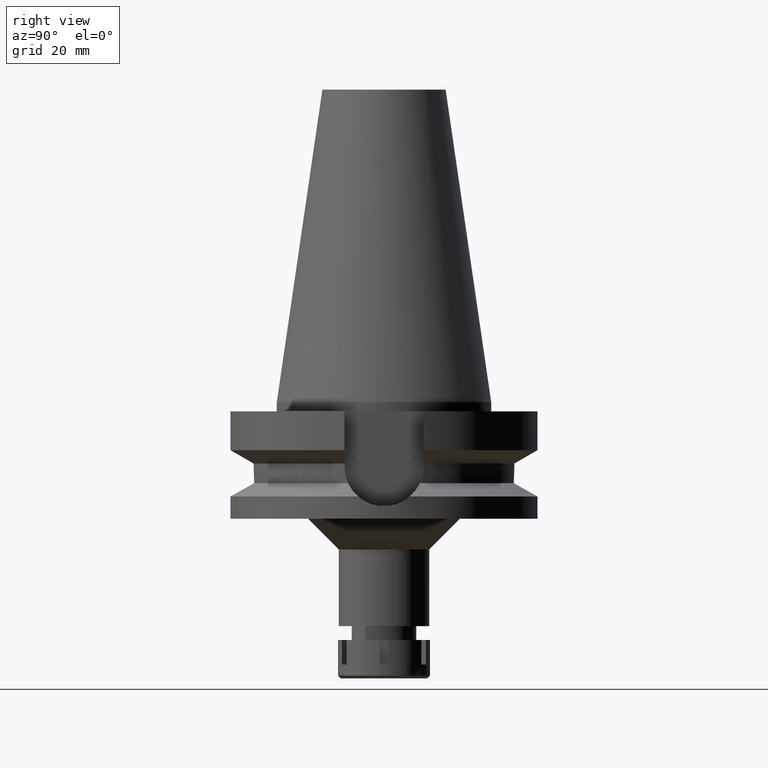
[diagram: clean part render]
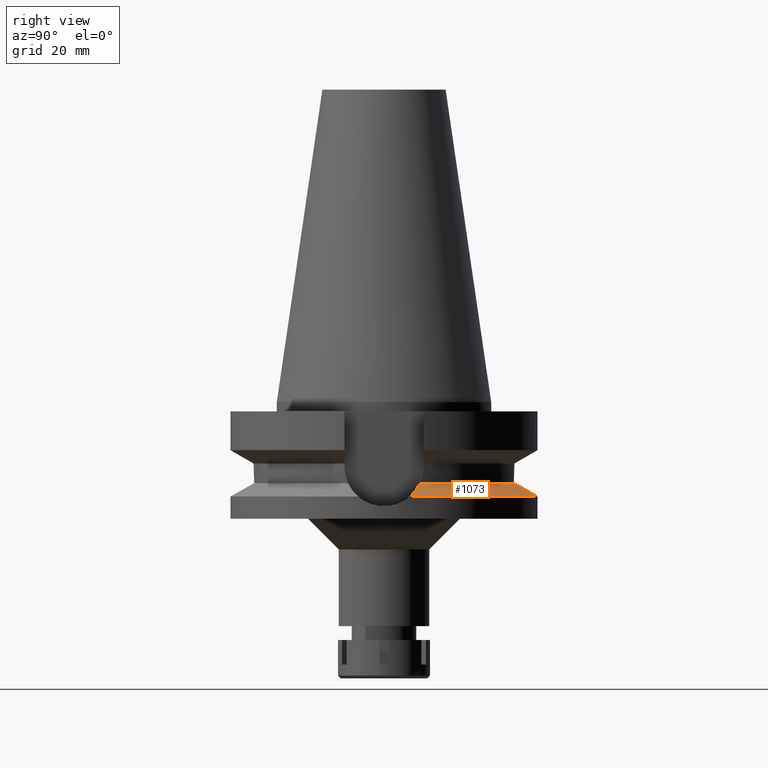
[diagram: same view with one face highlighted and labeled with its STEP entity id]
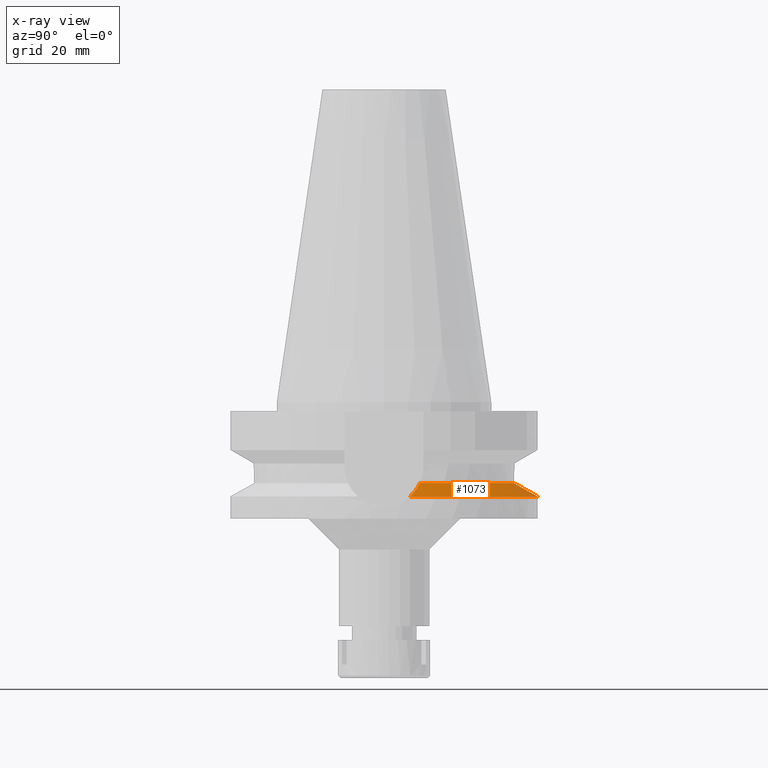
[diagram: x-ray of the same camera — body ghosted, the highlighted face saturated]
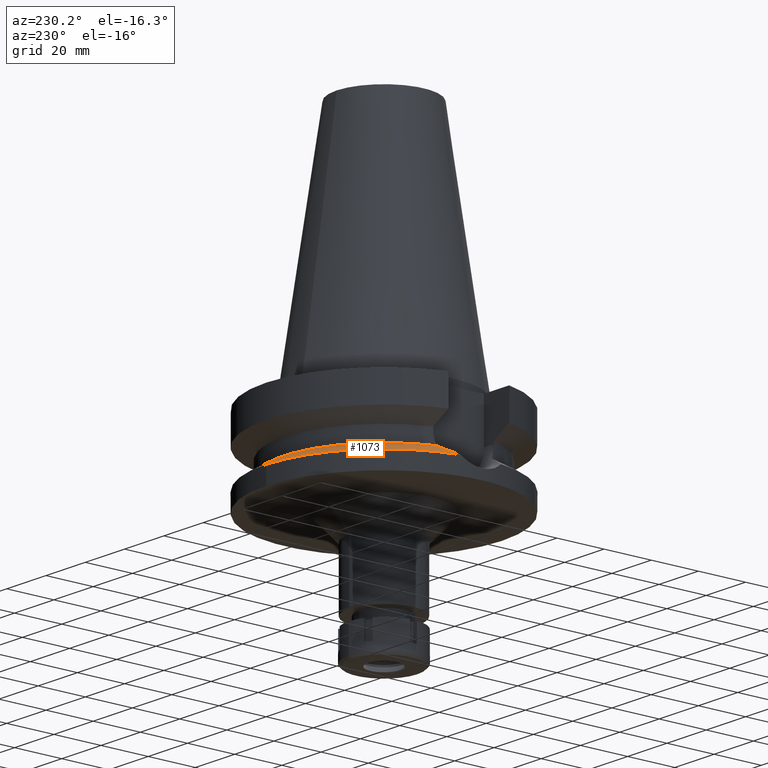
[diagram: same view with one face highlighted and labeled with its STEP entity id]
A machine part, right view. The second image highlights one B-rep face of the part: STEP entity #1073.
The next image is the same camera in x-ray: the body ghosted, the highlighted face saturated — about 0% of this face is hidden behind the body in this view.
A second angle (auxiliary view) of the same face is appended — the face is thin or edge-on in the first view.
In plain terms, the highlighted conical surface has half-angle 60 deg.
Its self-contained STEP definition (entity closure, byte-faithful):
#40 = DIRECTION ( 'NONE',  ( 0.0000000000000000000, 1.000000000000000000, 0.0000000000000000000 ) ) ;
#76 = CARTESIAN_POINT ( 'NONE',  ( 49.26250064874000145, 8.556052234130000045, -30.73730776426999967 ) ) ;
#123 = CARTESIAN_POINT ( 'NONE',  ( 45.37627881052473811, 10.36686973084558083, -28.74279703785065010 ) ) ;
#177 = VERTEX_POINT ( 'NONE', #1898 ) ;
#555 = DIRECTION ( 'NONE',  ( 0.0000000000000000000, 1.000000000000000000, 0.0000000000000000000 ) ) ;
#590 = CARTESIAN_POINT ( 'NONE',  ( -40.85052569294000335, 11.72538061688000077, -26.40718074535000426 ) ) ;
#767 = EDGE_CURVE ( 'NONE', #177, #841, #3171, .T. ) ;
#841 = VERTEX_POINT ( 'NONE', #590 ) ;
#858 = DIRECTION ( 'NONE',  ( 0.0000000000000000000, 0.0000000000000000000, -1.000000000000000000 ) ) ;
#952 = CARTESIAN_POINT ( 'NONE',  ( 45.97201651488722973, 10.13654113889506370, -29.04918853914906407 ) ) ;
#967 = CARTESIAN_POINT ( 'NONE',  ( 42.53342660350099180, 11.33456316611037273, -27.27884249410266548 ) ) ;
#995 = DIRECTION ( 'NONE',  ( 0.0000000000000000000, 0.0000000000000000000, -1.000000000000000000 ) ) ;
#1073 = ADVANCED_FACE ( 'NONE', ( #3550 ), #3305, .T. ) ;
#1117 = ORIENTED_EDGE ( 'NONE', *, *, #3623, .F. ) ;
#1147 = AXIS2_PLACEMENT_3D ( 'NONE', #1301, #2444, #555 ) ;
#1160 = CARTESIAN_POINT ( 'NONE',  ( -42.60307084149999213, 11.28512929655739505, -27.31412063348096453 ) ) ;
#1198 = CARTESIAN_POINT ( 'NONE',  ( -44.18048640046169595, 10.79303946074193021, -28.12751276167043102 ) ) ;
#1202 = CARTESIAN_POINT ( 'NONE',  ( 46.76411334014019161, 9.807266483954176550, -29.45626160013430095 ) ) ;
#1203 = CARTESIAN_POINT ( 'NONE',  ( 49.26250064874000145, 8.556052234130000045, -30.73730776426999967 ) ) ;
#1242 = CARTESIAN_POINT ( 'NONE',  ( 45.33993817945642490, 10.38053525392285970, -28.72410257728596861 ) ) ;
#1268 = EDGE_LOOP ( 'NONE', ( #3381, #1117, #3342, #1290, #3226 ) ) ;
#1290 = ORIENTED_EDGE ( 'NONE', *, *, #2096, .F. ) ;
#1301 = CARTESIAN_POINT ( 'NONE',  ( 0.0000000000000000000, 0.0000000000000000000, -26.40718074535000426 ) ) ;
#1406 = CARTESIAN_POINT ( 'NONE',  ( 0.0000000000000000000, 0.0000000000000000000, -30.73730776426999967 ) ) ;
#1408 = EDGE_CURVE ( 'NONE', #1465, #1620, #2397, .T. ) ;
#1465 = VERTEX_POINT ( 'NONE', #2861 ) ;
#1476 = CARTESIAN_POINT ( 'NONE',  ( -49.26250064874000145, 8.556052234130000045, -30.73730776426999967 ) ) ;
#1620 = VERTEX_POINT ( 'NONE', #1203 ) ;
#1688 = AXIS2_PLACEMENT_3D ( 'NONE', #2780, #2813, #3041 ) ;
#1748 = VERTEX_POINT ( 'NONE', #2489 ) ;
#1889 = EDGE_CURVE ( 'NONE', #841, #1748, #3515, .T. ) ;
#1898 = CARTESIAN_POINT ( 'NONE',  ( 40.85052569294000335, 11.72538061688000077, -26.40718074535000426 ) ) ;
#2013 = CARTESIAN_POINT ( 'NONE',  ( -46.99198346199477783, 9.743671528342995103, -29.57369424826924842 ) ) ;
#2042 = AXIS2_PLACEMENT_3D ( 'NONE', #2646, #995, #3272 ) ;
#2078 = CARTESIAN_POINT ( 'NONE',  ( 45.65334133000972372, 10.26126617522116469, -28.88530939441938372 ) ) ;
#2095 = CARTESIAN_POINT ( 'NONE',  ( 40.85052569294000335, 11.72538061688000077, -26.40718074535000426 ) ) ;
#2096 = EDGE_CURVE ( 'NONE', #1748, #1465, #2708, .T. ) ;
#2122 = B_SPLINE_CURVE_WITH_KNOTS ( 'NONE', 3,
 ( #76, #3206, #3176, #2621, #1202, #3485, #952, #2078, #3223, #2664, #123, #2374, #1242, #3525, #967, #2095 ),
 .UNSPECIFIED., .F., .F.,
 ( 4, 2, 2, 1, 1, 1, 1, 2, 2, 4 ),
 ( 0.0000000000000000000, 0.2500000000000042744, 0.3750000000000065503, 0.4375000000000076605, 0.4687500000000091038, 0.4843750000000097700, 0.4921875000000096034, 0.4960937500000085487, 0.5000000000000074385, 1.000000000000000000 ),
 .UNSPECIFIED. ) ;
#2312 = CARTESIAN_POINT ( 'NONE',  ( -45.28098774762838730, 10.40487782550048834, -28.69383663422955522 ) ) ;
#2374 = CARTESIAN_POINT ( 'NONE',  ( 45.35303410156340931, 10.37561697217217294, -28.73083948656667630 ) ) ;
#2397 = CIRCLE ( 'NONE', #2520, 50.00000000000000000 ) ;
#2444 = DIRECTION ( 'NONE',  ( 0.0000000000000000000, 0.0000000000000000000, 1.000000000000000000 ) ) ;
#2489 = CARTESIAN_POINT ( 'NONE',  ( -49.26250064874000145, 8.556052234130000045, -30.73730776426999967 ) ) ;
#2520 = AXIS2_PLACEMENT_3D ( 'NONE', #1406, #858, #40 ) ;
#2575 = CARTESIAN_POINT ( 'NONE',  ( -40.85052569294000335, 11.72538061688000077, -26.40718074535000426 ) ) ;
#2621 = CARTESIAN_POINT ( 'NONE',  ( 47.10306402821675675, 9.657043924551100389, -29.63031261899790536 ) ) ;
#2646 = CARTESIAN_POINT ( 'NONE',  ( 0.0000000000000000000, 0.0000000000000000000, -28.57224425480999841 ) ) ;
#2664 = CARTESIAN_POINT ( 'NONE',  ( 45.41111299698336978, 10.35373760785734021, -28.76071621083555385 ) ) ;
#2708 = CIRCLE ( 'NONE', #1688, 50.00000000000000000 ) ;
#2780 = CARTESIAN_POINT ( 'NONE',  ( 0.0000000000000000000, 0.0000000000000000000, -30.73730776426999967 ) ) ;
#2813 = DIRECTION ( 'NONE',  ( 0.0000000000000000000, 0.0000000000000000000, -1.000000000000000000 ) ) ;
#2861 = CARTESIAN_POINT ( 'NONE',  ( 0.0000000000000000000, 50.00000000000000000, -30.73730776426999967 ) ) ;
#3041 = DIRECTION ( 'NONE',  ( -0.9852500129747439050, 0.1711210446826074982, 0.0000000000000000000 ) ) ;
#3171 = CIRCLE ( 'NONE', #1147, 42.50000000000000000 ) ;
#3176 = CARTESIAN_POINT ( 'NONE',  ( 48.08625006149708270, 9.197950484833318896, -30.13482079872114383 ) ) ;
#3206 = CARTESIAN_POINT ( 'NONE',  ( 48.69681937575146691, 8.880677454740705912, -30.44760074616334578 ) ) ;
#3215 = CARTESIAN_POINT ( 'NONE',  ( -44.92204390581993323, 10.53646450206172602, -28.50923236059300336 ) ) ;
#3223 = CARTESIAN_POINT ( 'NONE',  ( 45.49216262650341491, 10.32301750868355406, -28.80240750384997739 ) ) ;
#3226 = ORIENTED_EDGE ( 'NONE', *, *, #1889, .F. ) ;
#3272 = DIRECTION ( 'NONE',  ( 0.0000000000000000000, -1.000000000000000000, 0.0000000000000000000 ) ) ;
#3305 = CONICAL_SURFACE ( 'NONE', #2042, 46.25000000000000000, 1.047197551196400456 ) ;
#3342 = ORIENTED_EDGE ( 'NONE', *, *, #1408, .F. ) ;
#3381 = ORIENTED_EDGE ( 'NONE', *, *, #767, .F. ) ;
#3444 = CARTESIAN_POINT ( 'NONE',  ( -43.79623614089040728, 10.91866005564207143, -27.92955523580695143 ) ) ;
#3462 = CARTESIAN_POINT ( 'NONE',  ( -48.20508804807420944, 9.162865319790430618, -30.19576632376156411 ) ) ;
#3478 = CARTESIAN_POINT ( 'NONE',  ( -41.75374128100435911, 11.51562827115039944, -26.87500298850696012 ) ) ;
#3485 = CARTESIAN_POINT ( 'NONE',  ( 46.23885429255066271, 10.02761425784652261, -29.18635126846271177 ) ) ;
#3515 = B_SPLINE_CURVE_WITH_KNOTS ( 'NONE', 3,
 ( #2575, #3478, #1160, #3444, #1198, #3215, #2312, #2013, #3462, #1476 ),
 .UNSPECIFIED., .F., .F.,
 ( 4, 2, 2, 2, 4 ),
 ( 0.0000000000000000000, 0.2499999999999994449, 0.3749999999999993894, 0.4999999999999993339, 1.000000000000000000 ),
 .UNSPECIFIED. ) ;
#3525 = CARTESIAN_POINT ( 'NONE',  ( 44.02650354439389702, 10.87301623092655056, -28.04842710598398980 ) ) ;
#3550 = FACE_OUTER_BOUND ( 'NONE', #1268, .T. ) ;
#3623 = EDGE_CURVE ( 'NONE', #1620, #177, #2122, .T. ) ;